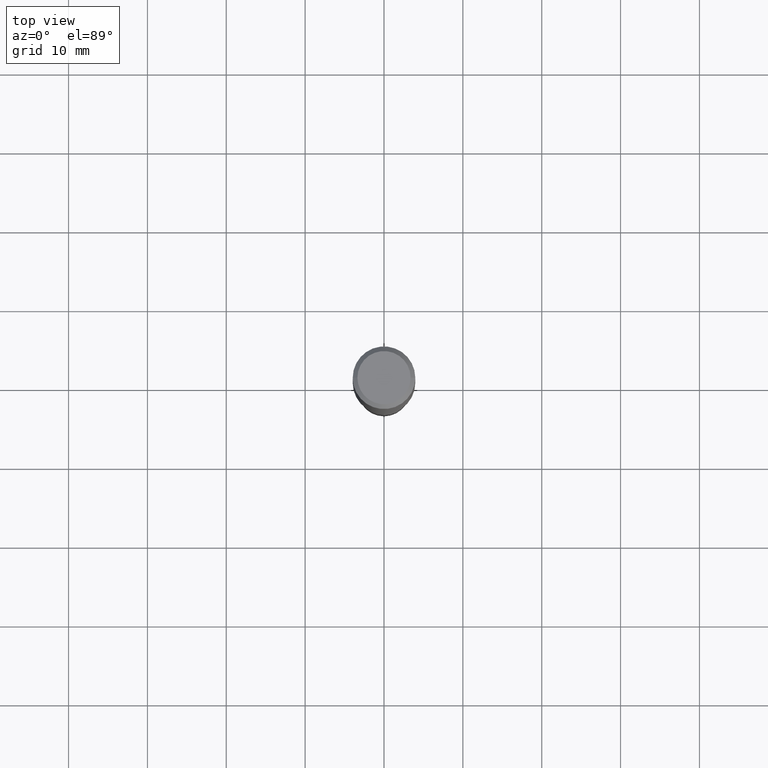
[diagram: clean part render]
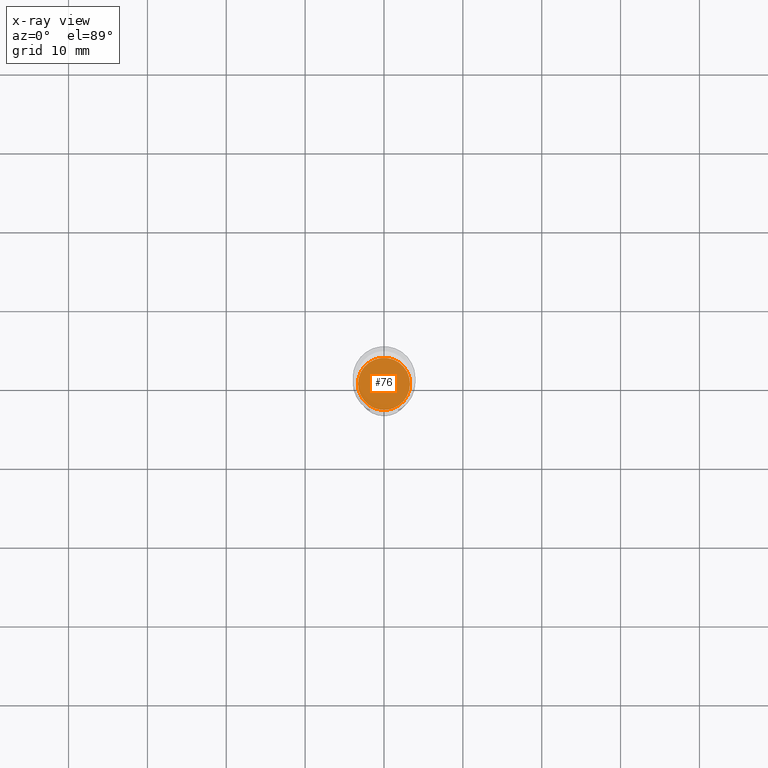
[diagram: x-ray — body ghosted, one internal face saturated and labeled with its STEP entity id]
A machine part, top view, then the same camera in x-ray: the body is ghosted and one INTERNAL B-rep face — a face not visible from any outside direction — is saturated and labeled: STEP entity #76.
In plain terms, the highlighted planar face has unit normal (-0, 0, 1).
Its self-contained STEP definition (entity closure, byte-faithful):
#4 = CARTESIAN_POINT ( 'NONE',  ( 4.421163054702109447E-29, -6.312249112494524251E-15, -1.807900000000000507 ) ) ;
#15 = CARTESIAN_POINT ( 'NONE',  ( 4.421163054702109447E-29, -6.312249112494524251E-15, -1.807900000000000507 ) ) ;
#26 = AXIS2_PLACEMENT_3D ( 'NONE', #173, #473, #97 ) ;
#61 = DIRECTION ( 'NONE',  ( 1.000000000000000000, -6.982962677686265922E-15, 0.000000000000000000 ) ) ;
#76 = ADVANCED_FACE ( 'NONE', ( #160 ), #441, .F. ) ;
#97 = DIRECTION ( 'NONE',  ( 1.000000000000000000, -6.982962677686265922E-15, 4.876176775795935793E-29 ) ) ;
#107 = CIRCLE ( 'NONE', #285, 0.1300000000000000044 ) ;
#129 = EDGE_LOOP ( 'NONE', ( #329, #363 ) ) ;
#153 = VERTEX_POINT ( 'NONE', #432 ) ;
#154 = AXIS2_PLACEMENT_3D ( 'NONE', #4, #404, #440 ) ;
#160 = FACE_OUTER_BOUND ( 'NONE', #129, .T. ) ;
#171 = DIRECTION ( 'NONE',  ( -2.445468806185136597E-29, 3.491481338843145583E-15, 1.000000000000000000 ) ) ;
#173 = CARTESIAN_POINT ( 'NONE',  ( 4.421163054702109447E-29, -6.312249112494524251E-15, -1.807900000000000507 ) ) ;
#177 = EDGE_CURVE ( 'NONE', #153, #271, #107, .T. ) ;
#209 = CARTESIAN_POINT ( 'NONE',  ( 0.1300000000000000044, -7.220034260593739238E-15, -1.807900000000000507 ) ) ;
#260 = EDGE_CURVE ( 'NONE', #271, #153, #292, .T. ) ;
#271 = VERTEX_POINT ( 'NONE', #209 ) ;
#285 = AXIS2_PLACEMENT_3D ( 'NONE', #15, #171, #61 ) ;
#292 = CIRCLE ( 'NONE', #154, 0.1300000000000000044 ) ;
#329 = ORIENTED_EDGE ( 'NONE', *, *, #260, .F. ) ;
#363 = ORIENTED_EDGE ( 'NONE', *, *, #177, .F. ) ;
#404 = DIRECTION ( 'NONE',  ( -2.445468806185136597E-29, 3.491481338843145583E-15, 1.000000000000000000 ) ) ;
#432 = CARTESIAN_POINT ( 'NONE',  ( -0.1300000000000000044, -5.385894328832282776E-15, -1.807900000000000507 ) ) ;
#440 = DIRECTION ( 'NONE',  ( 1.000000000000000000, -6.982962677686265922E-15, 0.000000000000000000 ) ) ;
#441 = PLANE ( 'NONE',  #26 ) ;
#473 = DIRECTION ( 'NONE',  ( -2.438088387897960049E-29, 3.491481338843145188E-15, 1.000000000000000000 ) ) ;